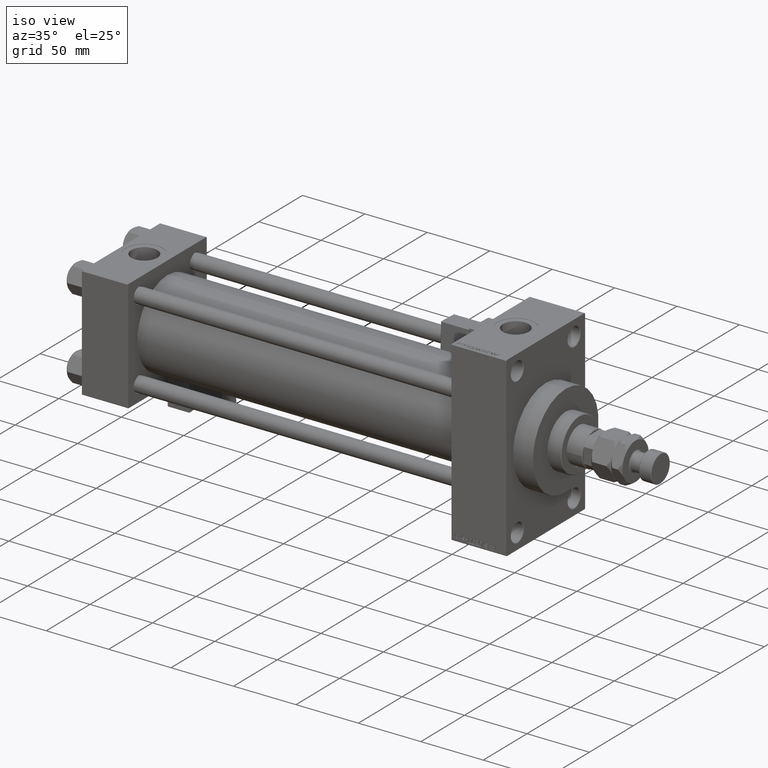
[diagram: clean part render]
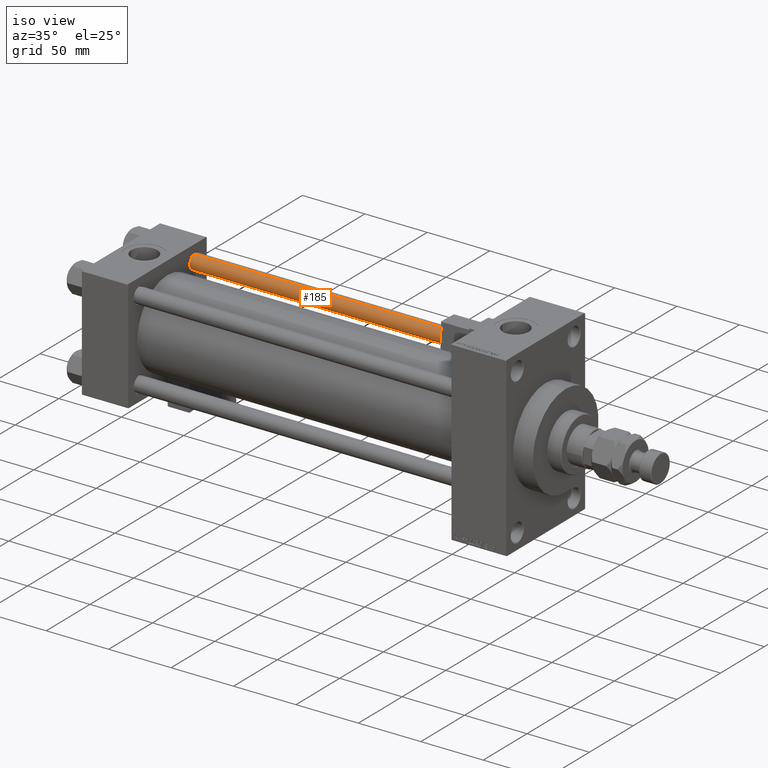
[diagram: same view with one face highlighted and labeled with its STEP entity id]
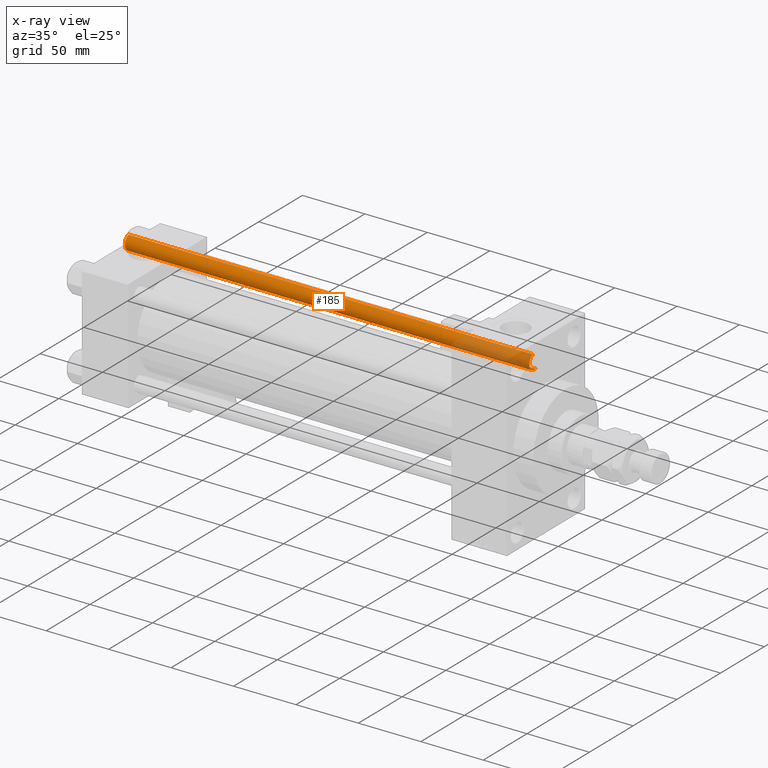
[diagram: x-ray of the same camera — body ghosted, the highlighted face saturated]
A machine part, iso view. The second image highlights one B-rep face of the part: STEP entity #185.
The next image is the same camera in x-ray: the body ghosted, the highlighted face saturated — about 18% of this face is hidden behind the body in this view.
In plain terms, the highlighted cylindrical surface (edge-blend (fillet) strip) has radius 6 mm, axis along (-1, -0, 0).
Its self-contained STEP definition (entity closure, byte-faithful):
#185 = ADVANCED_FACE ( 'NONE', ( #48635 ), #45363, .T. ) ;
#691 = ORIENTED_EDGE ( 'NONE', *, *, #35505, .T. ) ;
#723 = ORIENTED_EDGE ( 'NONE', *, *, #38655, .T. ) ;
#1423 = VERTEX_POINT ( 'NONE', #36181 ) ;
#2021 = EDGE_LOOP ( 'NONE', ( #21979, #723, #31792, #691 ) ) ;
#2082 = DIRECTION ( 'NONE',  ( 1.000000000000000000, 0.000000000000000000, 0.000000000000000000 ) ) ;
#2105 = VERTEX_POINT ( 'NONE', #52980 ) ;
#2117 = CIRCLE ( 'NONE', #30412, 6.000000000000000888 ) ;
#5035 = VECTOR ( 'NONE', #46385, 1000.000000000000000 ) ;
#6644 = DIRECTION ( 'NONE',  ( 0.000000000000000000, 0.000000000000000000, -1.000000000000000000 ) ) ;
#7521 = VERTEX_POINT ( 'NONE', #25974 ) ;
#9614 = CARTESIAN_POINT ( 'NONE',  ( 6.000000000000000888, 7.347880794884120722E-16, 324.5000000000001137 ) ) ;
#13106 = DIRECTION ( 'NONE',  ( -0.000000000000000000, -0.000000000000000000, -1.000000000000000000 ) ) ;
#17223 = DIRECTION ( 'NONE',  ( 1.000000000000000000, 0.000000000000000000, 0.000000000000000000 ) ) ;
#19297 = CARTESIAN_POINT ( 'NONE',  ( 0.000000000000000000, 0.000000000000000000, 324.5000000000001137 ) ) ;
#19867 = DIRECTION ( 'NONE',  ( -1.000000000000000000, 0.000000000000000000, 0.000000000000000000 ) ) ;
#20841 = VECTOR ( 'NONE', #13106, 1000.000000000000000 ) ;
#21129 = EDGE_CURVE ( 'NONE', #7521, #2105, #29958, .T. ) ;
#21403 = AXIS2_PLACEMENT_3D ( 'NONE', #32979, #49406, #19867 ) ;
#21797 = DIRECTION ( 'NONE',  ( -0.000000000000000000, -0.000000000000000000, 1.000000000000000000 ) ) ;
#21979 = ORIENTED_EDGE ( 'NONE', *, *, #47114, .F. ) ;
#25479 = CARTESIAN_POINT ( 'NONE',  ( 6.000000000000000888, 7.347880794884120722E-16, 325.0000000000000000 ) ) ;
#25974 = CARTESIAN_POINT ( 'NONE',  ( -6.000000000000000888, 0.000000000000000000, 324.5000000000001137 ) ) ;
#29958 = LINE ( 'NONE', #42889, #5035 ) ;
#30100 = CARTESIAN_POINT ( 'NONE',  ( 0.000000000000000000, 0.000000000000000000, 0.5000000000000004441 ) ) ;
#30412 = AXIS2_PLACEMENT_3D ( 'NONE', #19297, #6644, #2082 ) ;
#31792 = ORIENTED_EDGE ( 'NONE', *, *, #21129, .T. ) ;
#32979 = CARTESIAN_POINT ( 'NONE',  ( 0.000000000000000000, 0.000000000000000000, 325.0000000000000000 ) ) ;
#33732 = VERTEX_POINT ( 'NONE', #9614 ) ;
#35505 = EDGE_CURVE ( 'NONE', #2105, #1423, #48461, .T. ) ;
#36181 = CARTESIAN_POINT ( 'NONE',  ( 6.000000000000000888, 7.347880794884120722E-16, 0.5000000000000004441 ) ) ;
#38655 = EDGE_CURVE ( 'NONE', #33732, #7521, #2117, .T. ) ;
#42889 = CARTESIAN_POINT ( 'NONE',  ( -6.000000000000000888, 0.000000000000000000, 325.0000000000000000 ) ) ;
#44993 = AXIS2_PLACEMENT_3D ( 'NONE', #30100, #21797, #17223 ) ;
#45363 = CYLINDRICAL_SURFACE ( 'NONE', #21403, 6.000000000000000888 ) ;
#46385 = DIRECTION ( 'NONE',  ( -0.000000000000000000, -0.000000000000000000, -1.000000000000000000 ) ) ;
#46980 = LINE ( 'NONE', #25479, #20841 ) ;
#47114 = EDGE_CURVE ( 'NONE', #33732, #1423, #46980, .T. ) ;
#48461 = CIRCLE ( 'NONE', #44993, 6.000000000000000888 ) ;
#48635 = FACE_OUTER_BOUND ( 'NONE', #2021, .T. ) ;
#49406 = DIRECTION ( 'NONE',  ( -0.000000000000000000, -0.000000000000000000, -1.000000000000000000 ) ) ;
#52980 = CARTESIAN_POINT ( 'NONE',  ( -6.000000000000000888, 0.000000000000000000, 0.5000000000000004441 ) ) ;